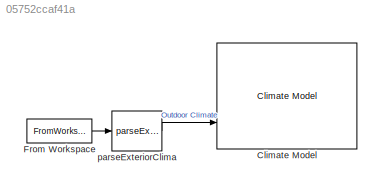
MODEL slx_05752ccaf41a
KIND model
CONFIG AbsTol = auto
CONFIG EnableMultiTasking = off
CONFIG FixedStep = auto
CONFIG MaxStep = auto
CONFIG MinStep = auto
CONFIG RelTol = 1e-3
CONFIG SampleTimeConstraint = Unconstrained
CONFIG SolverName = VariableStepAuto
CONFIG StartTime = 0.0
CONFIG StopTime = 10
BLOCK [Reference] Climate Model  REF=HORTISIM/Climate/Models/Climate Model
  Ports = [3, 1]
  SourceBlock = HORTISIM/Climate/Models/Climate Model
  SourceProductName = Horti Simulator
BLOCK [FromWorkspace] From Workspace
  VariableName = climate
BLOCK [Reference] parseExteriorClima  REF=HORTISIM/Other 
Functions/parseExteriorClima
  Ports = [1, 1]
  SourceBlock = HORTISIM/Other \nFunctions/parseExteriorClima
  SourceProductName = Horti Simulator
  SourceType = SubSystem
LINE From Workspace:1 -> parseExteriorClima:1
LINE parseExteriorClima:1 -> Climate Model:3
